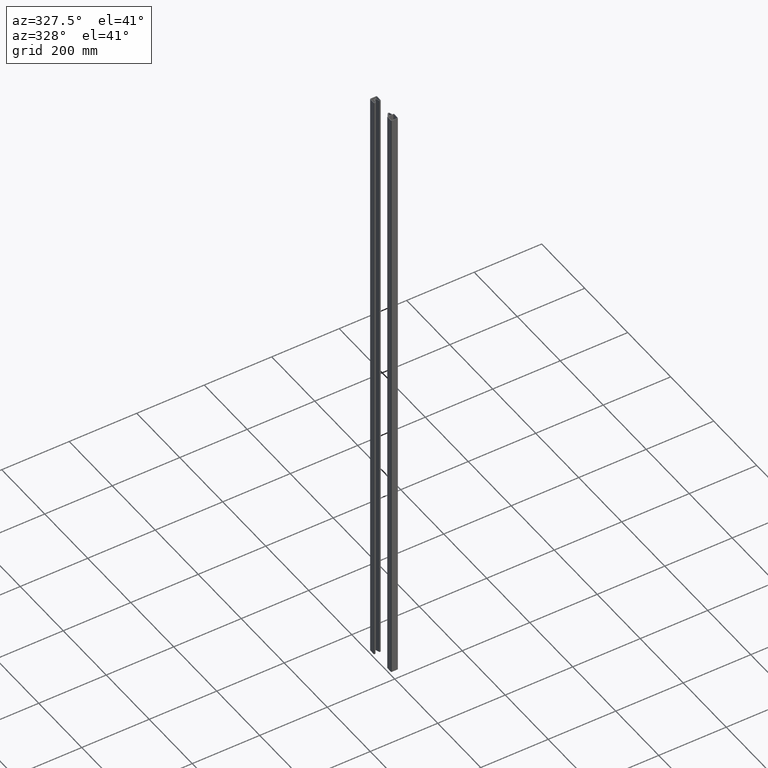
[diagram: clean part render]
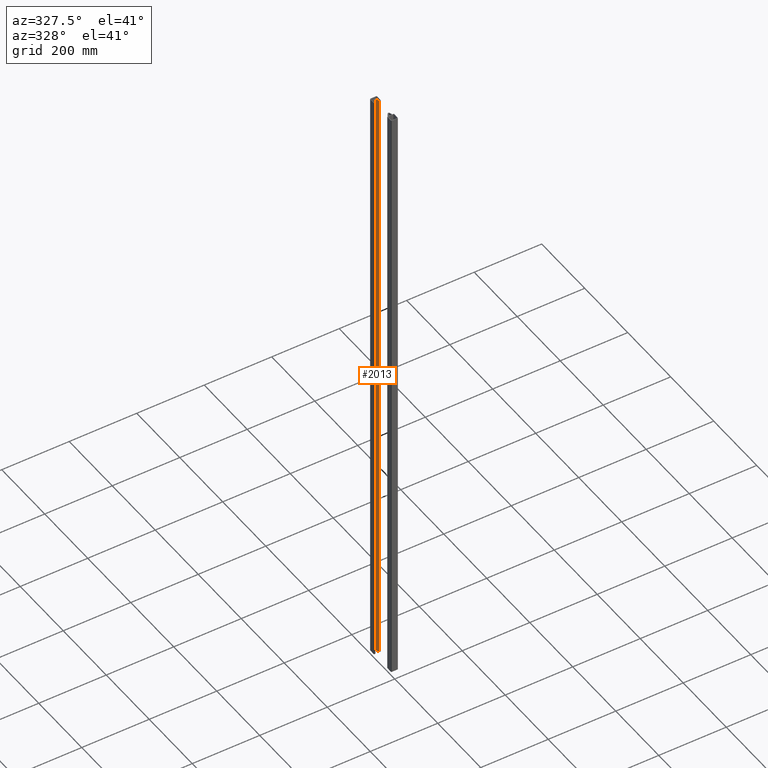
[diagram: same view with one face highlighted and labeled with its STEP entity id]
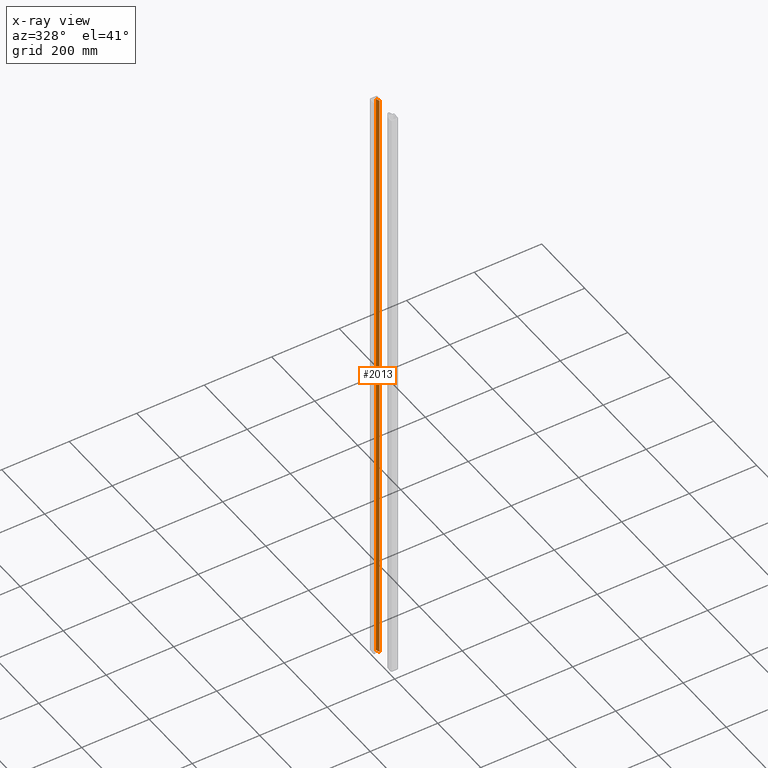
[diagram: x-ray of the same camera — body ghosted, the highlighted face saturated]
A machine part, auxiliary view. The second image highlights one B-rep face of the part: STEP entity #2013.
The next image is the same camera in x-ray: the body ghosted, the highlighted face saturated — about 0% of this face is hidden behind the body in this view.
In plain terms, the highlighted planar face has unit normal (-0.9511, -0.309, -0).
Its self-contained STEP definition (entity closure, byte-faithful):
#3 = DIRECTION ( 'NONE',  ( 0.000000000000000000, 0.000000000000000000, 1.000000000000000000 ) ) ;
#17 = CARTESIAN_POINT ( 'NONE',  ( 2.243034683953359032, 8.500000000000000000, -1825.000000000000000 ) ) ;
#49 = CARTESIAN_POINT ( 'NONE',  ( 5.799999999999999822, 19.44721359549996720, 0.000000000000000000 ) ) ;
#56 = CARTESIAN_POINT ( 'NONE',  ( 5.799999999999999822, 19.44721359549996720, 0.000000000000000000 ) ) ;
#318 = ORIENTED_EDGE ( 'NONE', *, *, #1121, .F. ) ;
#414 = VERTEX_POINT ( 'NONE', #2052 ) ;
#509 = VECTOR ( 'NONE', #3, 1000.000000000000000 ) ;
#564 = CARTESIAN_POINT ( 'NONE',  ( 5.799999999999999822, 19.44721359549996720, -1825.000000000000000 ) ) ;
#579 = LINE ( 'NONE', #1205, #509 ) ;
#594 = VECTOR ( 'NONE', #1009, 1000.000000000000000 ) ;
#847 = CARTESIAN_POINT ( 'NONE',  ( 2.243034683953359032, 8.500000000000000000, -1825.000000000000000 ) ) ;
#927 = ORIENTED_EDGE ( 'NONE', *, *, #2126, .T. ) ;
#943 = PLANE ( 'NONE',  #1172 ) ;
#993 = EDGE_LOOP ( 'NONE', ( #1830, #318, #927, #2363 ) ) ;
#1009 = DIRECTION ( 'NONE',  ( -0.3090169943749513370, -0.9510565162951523099, 0.000000000000000000 ) ) ;
#1015 = VERTEX_POINT ( 'NONE', #1521 ) ;
#1042 = LINE ( 'NONE', #847, #2286 ) ;
#1121 = EDGE_CURVE ( 'NONE', #414, #1420, #579, .T. ) ;
#1140 = FACE_OUTER_BOUND ( 'NONE', #993, .T. ) ;
#1172 = AXIS2_PLACEMENT_3D ( 'NONE', #564, #1878, #2452 ) ;
#1185 = EDGE_CURVE ( 'NONE', #1420, #1015, #2130, .T. ) ;
#1205 = CARTESIAN_POINT ( 'NONE',  ( 5.799999999999999822, 19.44721359549996720, -1825.000000000000000 ) ) ;
#1375 = VECTOR ( 'NONE', #1606, 1000.000000000000000 ) ;
#1420 = VERTEX_POINT ( 'NONE', #56 ) ;
#1456 = EDGE_CURVE ( 'NONE', #1466, #1015, #1042, .T. ) ;
#1466 = VERTEX_POINT ( 'NONE', #17 ) ;
#1521 = CARTESIAN_POINT ( 'NONE',  ( 2.243034683953359032, 8.500000000000000000, 0.000000000000000000 ) ) ;
#1606 = DIRECTION ( 'NONE',  ( -0.3090169943749513370, -0.9510565162951523099, 0.000000000000000000 ) ) ;
#1788 = DIRECTION ( 'NONE',  ( 0.000000000000000000, 0.000000000000000000, 1.000000000000000000 ) ) ;
#1830 = ORIENTED_EDGE ( 'NONE', *, *, #1185, .F. ) ;
#1878 = DIRECTION ( 'NONE',  ( -0.9510565162951523099, 0.3090169943749512815, 0.000000000000000000 ) ) ;
#2013 = ADVANCED_FACE ( 'NONE', ( #1140 ), #943, .T. ) ;
#2052 = CARTESIAN_POINT ( 'NONE',  ( 5.799999999999999822, 19.44721359549996720, -1825.000000000000000 ) ) ;
#2126 = EDGE_CURVE ( 'NONE', #414, #1466, #2330, .T. ) ;
#2130 = LINE ( 'NONE', #49, #594 ) ;
#2286 = VECTOR ( 'NONE', #1788, 1000.000000000000000 ) ;
#2330 = LINE ( 'NONE', #2350, #1375 ) ;
#2350 = CARTESIAN_POINT ( 'NONE',  ( 5.799999999999999822, 19.44721359549996720, -1825.000000000000000 ) ) ;
#2363 = ORIENTED_EDGE ( 'NONE', *, *, #1456, .T. ) ;
#2452 = DIRECTION ( 'NONE',  ( -0.3090169943749512815, -0.9510565162951523099, 0.000000000000000000 ) ) ;